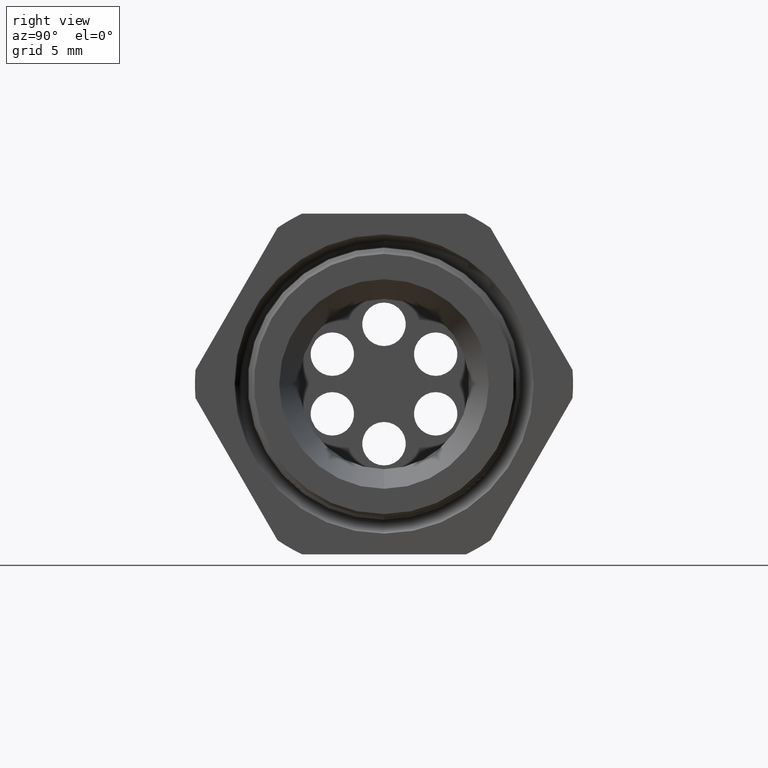
[diagram: clean part render]
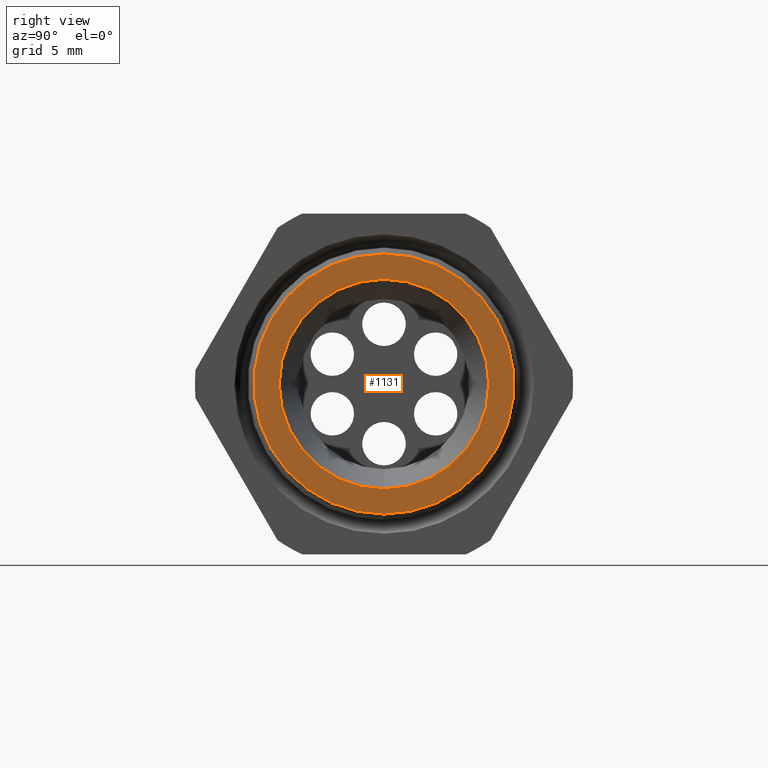
[diagram: same view with one face highlighted and labeled with its STEP entity id]
A machine part, right view. The second image highlights one B-rep face of the part: STEP entity #1131.
In plain terms, the highlighted planar face has unit normal (1, 0, 0).
Its self-contained STEP definition (entity closure, byte-faithful):
#562 = EDGE_CURVE ( 'NONE', #563, #564, #2772, .T. ) ;
#563 = VERTEX_POINT ( 'NONE', #2767 ) ;
#564 = VERTEX_POINT ( 'NONE', #2766 ) ;
#598 = VERTEX_POINT ( 'NONE', #2887 ) ;
#600 = EDGE_CURVE ( 'NONE', #598, #601, #2886, .T. ) ;
#601 = VERTEX_POINT ( 'NONE', #2881 ) ;
#1053 = ORIENTED_EDGE ( 'NONE', *, *, #562, .T. ) ;
#1054 = EDGE_LOOP ( 'NONE', ( #1055, #1114 ) ) ;
#1055 = ORIENTED_EDGE ( 'NONE', *, *, #1113, .F. ) ;
#1113 = EDGE_CURVE ( 'NONE', #601, #598, #3919, .T. ) ;
#1114 = ORIENTED_EDGE ( 'NONE', *, *, #600, .F. ) ;
#1131 = ADVANCED_FACE ( 'NONE', ( #3949, #3948 ), #3947, .T. ) ;
#1132 = EDGE_LOOP ( 'NONE', ( #1133, #1053 ) ) ;
#1133 = ORIENTED_EDGE ( 'NONE', *, *, #1134, .T. ) ;
#1134 = EDGE_CURVE ( 'NONE', #564, #563, #3942, .T. ) ;
#2766 = CARTESIAN_POINT ( 'NONE',  ( 0.03999999999999998000, 0.0000000000000000000, 0.3589231061661941600 ) ) ;
#2767 = CARTESIAN_POINT ( 'NONE',  ( 0.03999999999999998000, 4.441516496824528300E-017, -0.3589231061661941600 ) ) ;
#2768 = DIRECTION ( 'NONE',  ( 0.0000000000000000000, 0.0000000000000000000, -1.000000000000000000 ) ) ;
#2769 = DIRECTION ( 'NONE',  ( 1.000000000000000000, 0.0000000000000000000, 0.0000000000000000000 ) ) ;
#2770 = CARTESIAN_POINT ( 'NONE',  ( 0.03999999999999998000, 0.0000000000000000000, 0.0000000000000000000 ) ) ;
#2771 = AXIS2_PLACEMENT_3D ( 'NONE', #2770, #2769, #2768 ) ;
#2772 = CIRCLE ( 'NONE', #2771, 0.3589231061661941600 ) ;
#2881 = CARTESIAN_POINT ( 'NONE',  ( 0.03999999999999998000, 0.0000000000000000000, -0.2891955268946231900 ) ) ;
#2882 = DIRECTION ( 'NONE',  ( 0.0000000000000000000, 0.0000000000000000000, -1.000000000000000000 ) ) ;
#2883 = DIRECTION ( 'NONE',  ( 1.000000000000000000, 0.0000000000000000000, 0.0000000000000000000 ) ) ;
#2884 = CARTESIAN_POINT ( 'NONE',  ( 0.03999999999999998000, 0.0000000000000000000, 0.0000000000000000000 ) ) ;
#2885 = AXIS2_PLACEMENT_3D ( 'NONE', #2884, #2883, #2882 ) ;
#2886 = CIRCLE ( 'NONE', #2885, 0.2891955268946231900 ) ;
#2887 = CARTESIAN_POINT ( 'NONE',  ( 0.03999999999999998000, 3.541623763392326200E-017, 0.2891955268946231900 ) ) ;
#3910 = DIRECTION ( 'NONE',  ( 0.0000000000000000000, 0.0000000000000000000, -1.000000000000000000 ) ) ;
#3911 = DIRECTION ( 'NONE',  ( 1.000000000000000000, 0.0000000000000000000, 0.0000000000000000000 ) ) ;
#3912 = CARTESIAN_POINT ( 'NONE',  ( 0.03999999999999998000, 0.0000000000000000000, 0.0000000000000000000 ) ) ;
#3913 = AXIS2_PLACEMENT_3D ( 'NONE', #3912, #3911, #3910 ) ;
#3919 = CIRCLE ( 'NONE', #3913, 0.2891955268946231900 ) ;
#3938 = DIRECTION ( 'NONE',  ( 0.0000000000000000000, 0.0000000000000000000, -1.000000000000000000 ) ) ;
#3939 = DIRECTION ( 'NONE',  ( 1.000000000000000000, 0.0000000000000000000, 0.0000000000000000000 ) ) ;
#3940 = CARTESIAN_POINT ( 'NONE',  ( 0.03999999999999998000, 0.0000000000000000000, 0.0000000000000000000 ) ) ;
#3941 = AXIS2_PLACEMENT_3D ( 'NONE', #3940, #3939, #3938 ) ;
#3942 = CIRCLE ( 'NONE', #3941, 0.3589231061661941600 ) ;
#3943 = DIRECTION ( 'NONE',  ( 0.0000000000000000000, 0.0000000000000000000, -1.000000000000000000 ) ) ;
#3944 = DIRECTION ( 'NONE',  ( 1.000000000000000000, 0.0000000000000000000, 0.0000000000000000000 ) ) ;
#3945 = CARTESIAN_POINT ( 'NONE',  ( 0.03999999999999998000, 0.2891955268946231900, 0.0000000000000000000 ) ) ;
#3946 = AXIS2_PLACEMENT_3D ( 'NONE', #3945, #3944, #3943 ) ;
#3947 = PLANE ( 'NONE',  #3946 ) ;
#3948 = FACE_BOUND ( 'NONE', #1054, .T. ) ;
#3949 = FACE_OUTER_BOUND ( 'NONE', #1132, .T. ) ;